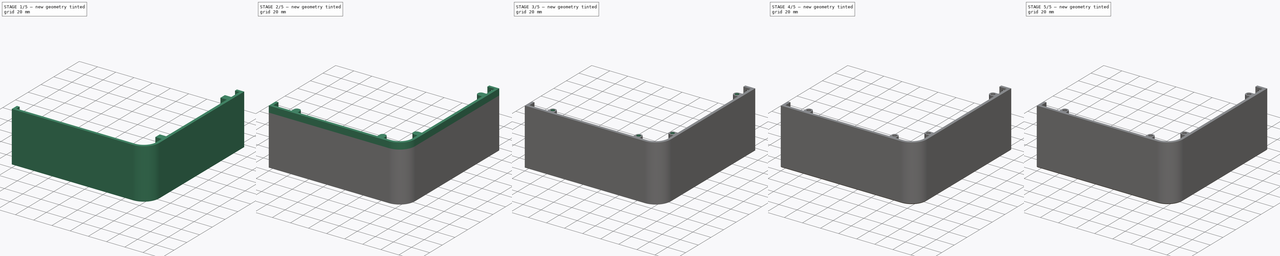
[diagram: build sequence overview — one tinted view per stage of 5, left to right]
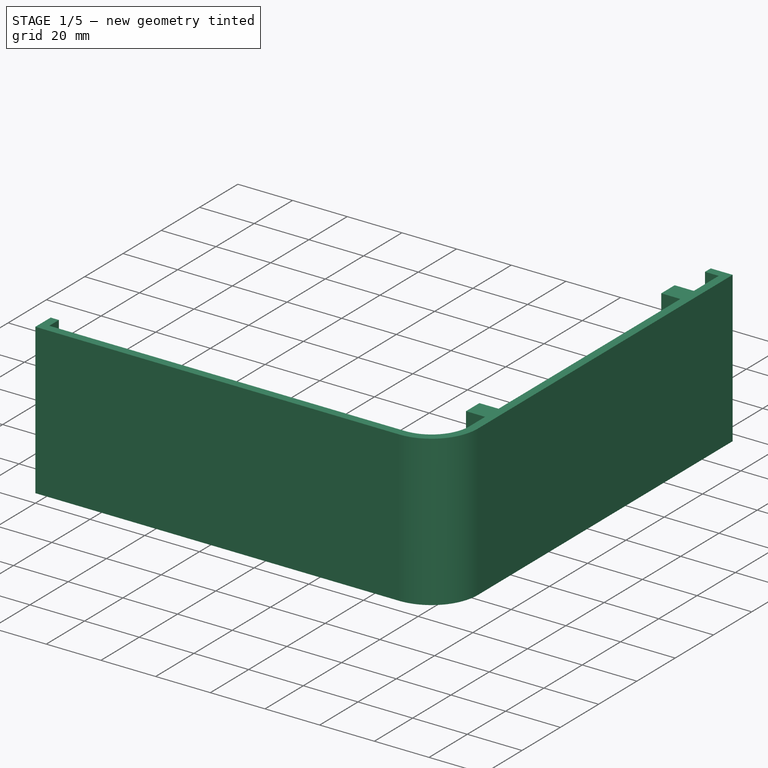
[diagram: stage 1 of 5 — iso view after this stage's code; geometry added in this stage tinted green]
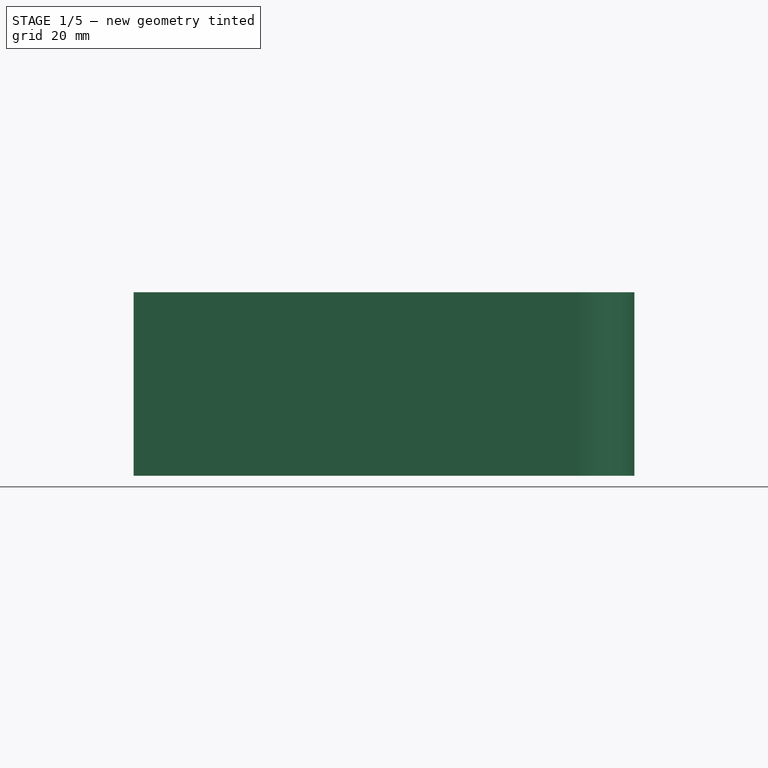
[diagram: stage 1 of 5 — front view after this stage's code; geometry added in this stage tinted green]
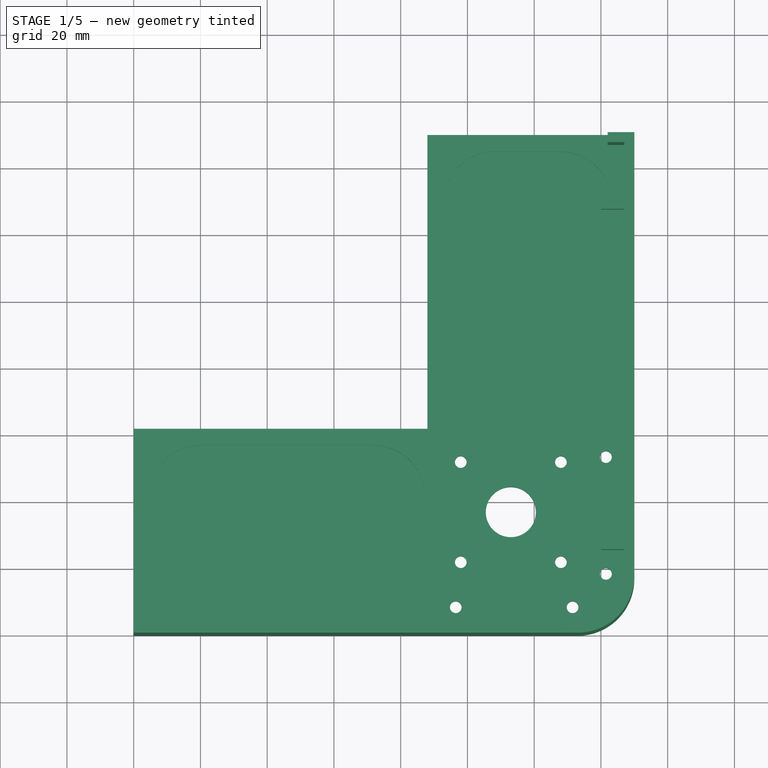
[diagram: stage 1 of 5 — top view after this stage's code; geometry added in this stage tinted green]
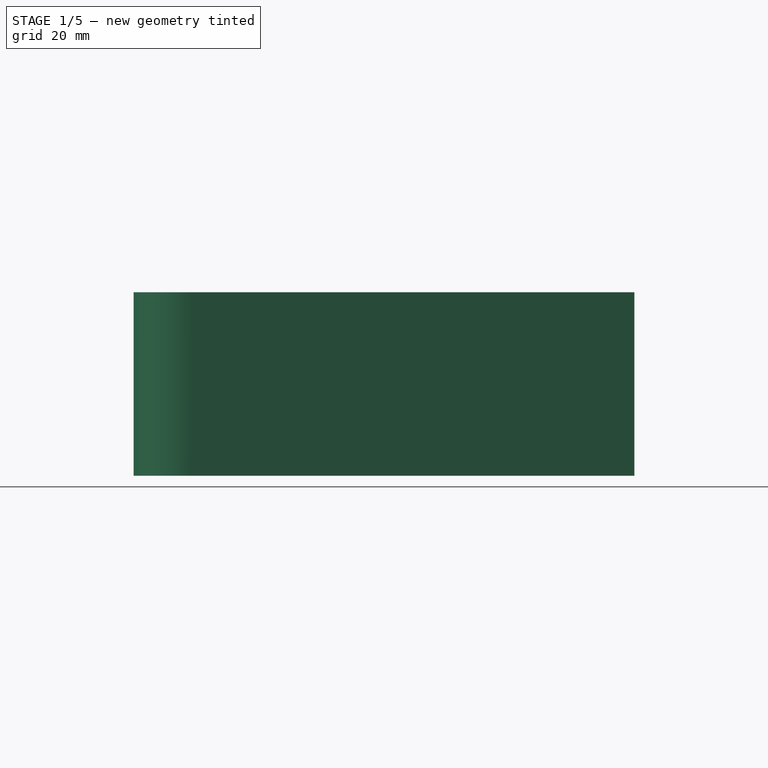
[diagram: stage 1 of 5 — right view after this stage's code; geometry added in this stage tinted green]
FCSTD DOCUMENT  (FreeCAD 0.21R33771 (Git))
Label: upper_plate_adapter
License: All rights reserved
LicenseURL: http://en.wikipedia.org/wiki/All_rights_reserved
objects: Sketcher::SketchObject×18, PartDesign::Fillet×18, App::MeasureDistance×17, PartDesign::Pad×12, PartDesign::Pocket×9, PartDesign::Chamfer×3, PartDesign::Body×1
note: 103 computed .brp shape members not serialized (recipe doc carries the construction recipe); baked Part::Feature solids carry a one-line shape summary decoded from their .brp

FEATURE [Sketcher::SketchObject] Sketch
  FullyConstrained = false
  MapMode = 5
  Support = -> [XY_Plane]
  sketch-geometry (27):
    g0: LineSegment StartX=0 StartY=0 StartZ=0 EndX=150 EndY=0 EndZ=0
    g1: LineSegment StartX=150 StartY=0 StartZ=0 EndX=150 EndY=150 EndZ=0
    g2: LineSegment StartX=150 StartY=150 StartZ=0 EndX=0 EndY=150 EndZ=0
    g3: LineSegment StartX=0 StartY=150 StartZ=0 EndX=0 EndY=0 EndZ=0
    g4: LineSegment StartX=0 StartY=0 StartZ=0 EndX=0 EndY=62 EndZ=0
    g5: LineSegment StartX=150 StartY=150 StartZ=0 EndX=88 EndY=150 EndZ=0
    g6: LineSegment StartX=0 StartY=62 StartZ=0 EndX=88 EndY=62 EndZ=0
    g7: LineSegment StartX=88 StartY=150 StartZ=0 EndX=88 EndY=62 EndZ=0
    g8: LineSegment StartX=96.5 StartY=53.5 StartZ=0 EndX=141.5 EndY=53.5 EndZ=0
    g9: LineSegment StartX=141.5 StartY=53.5 StartZ=0 EndX=141.5 EndY=8.5 EndZ=0
    g10: LineSegment StartX=141.5 StartY=8.5 StartZ=0 EndX=96.5 EndY=8.5 EndZ=0
    g11: LineSegment StartX=96.5 StartY=8.5 StartZ=0 EndX=96.5 EndY=53.5 EndZ=0
    g12: LineSegment StartX=88 StartY=62 StartZ=0 EndX=150 EndY=0 EndZ=0
    g13: LineSegment StartX=88 StartY=62 StartZ=0 EndX=96.5 EndY=53.5 EndZ=0
    g14: Circle CenterX=96.5 CenterY=8.5 CenterZ=0 NormalX=0 NormalY=0 NormalZ=1 AngleXU=0 Radius=1.75
    g15: Circle CenterX=141.5 CenterY=53.5 CenterZ=0 NormalX=0 NormalY=0 NormalZ=1 AngleXU=0 Radius=1.75
    g16: LineSegment StartX=141.5 StartY=8.5 StartZ=0 EndX=131.5 EndY=8.5 EndZ=0
    g17: LineSegment StartX=131.5 StartY=8.5 StartZ=0 EndX=131.5 EndY=18.5 EndZ=0
    g18: LineSegment StartX=131.5 StartY=18.5 StartZ=0 EndX=141.5 EndY=18.5 EndZ=0
    g19: LineSegment StartX=141.5 StartY=18.5 StartZ=0 EndX=141.5 EndY=8.5 EndZ=0
    g20: Circle CenterX=131.5 CenterY=8.5 CenterZ=0 NormalX=0 NormalY=0 NormalZ=1 AngleXU=0 Radius=1.75
    g21: Circle CenterX=141.5 CenterY=18.5 CenterZ=0 NormalX=0 NormalY=0 NormalZ=1 AngleXU=0 Radius=1.75
    g22: Circle CenterX=113 CenterY=37 CenterZ=0 NormalX=0 NormalY=0 NormalZ=1 AngleXU=0 Radius=7.5
    g23: LineSegment StartX=98.5801 StartY=51.4199 StartZ=0 EndX=127.809 EndY=51.4199 EndZ=0
    g24: LineSegment StartX=127.809 StartY=51.4199 StartZ=0 EndX=127.809 EndY=22.1914 EndZ=0
    g25: LineSegment StartX=127.809 StartY=22.1914 StartZ=0 EndX=98.5801 EndY=22.1914 EndZ=0
    g26: LineSegment StartX=98.5801 StartY=22.1914 StartZ=0 EndX=98.5801 EndY=51.4199 EndZ=0
  constraints (69):
    c: Coincident(g0,g1)
    c: Coincident(g1,g2)
    c: Coincident(g2,g3)
    c: Coincident(g3,g0)
    c: Horizontal(g0)
    c: Horizontal(g2)
    c: Vertical(g1)
    c: Vertical(g3)
    c: Coincident(g0,g-1)
    c: DistanceX(g0,g0) = 150
    c: DistanceY(g1,g1) = 150
    c: Coincident(g4,g0)
    c: PointOnObject(g4,g3)
    c: Coincident(g5,g1)
    c: PointOnObject(g5,g2)
    c: DistanceX(g5,g1) = 62
    c: Equal(g4,g5)
    c: Coincident(g6,g4)
    c: Horizontal(g6)
    c: Coincident(g7,g5)
    c: Coincident(g7,g6)
    c: Vertical(g7)
    c: Coincident(g8,g9)
    c: Coincident(g9,g10)
    c: Coincident(g10,g11)
    c: Coincident(g11,g8)
    c: Horizontal(g8)
    c: Horizontal(g10)
    c: Vertical(g9)
    c: Vertical(g11)
    c: Equal(g10,g9)
    c: DistanceX(g10,g10) = 45
    c: Coincident(g12,g6)
    c: Coincident(g12,g0)
    c: PointOnObject(g8,g12)
    c: Coincident(g13,g6)
    c: Coincident(g13,g8)
    c: DistanceX(g9,g0) = 8.5
    c: Coincident(g14,g10)
    c: Coincident(g15,g8)
    c: Coincident(g16,g17)
    c: Coincident(g17,g18)
    c: Coincident(g18,g19)
    c: Coincident(g19,g16)
    c: Horizontal(g16)
    c: Horizontal(g18)
    c: Vertical(g17)
    c: Vertical(g19)
    c: Coincident(g16,g9)
    c: PointOnObject(g17,g12)
    c: DistanceY(g17,g17) = 10
    c: Coincident(g20,g16)
    c: Coincident(g21,g18)
    c: Equal(g21,g15)
    c: Equal(g21,g20)
    c: Equal(g21,g14)
    c: Diameter(g21) = 3.5
    c: PointOnObject(g22,g12)
    c: Diameter(g22) = 15
    c: DistanceX(g6,g22) = 25
    c: Coincident(g23,g24)
    c: Coincident(g24,g25)
    c: Coincident(g25,g26)
    c: Coincident(g26,g23)
    c: Horizontal(g23)
    c: Horizontal(g25)
    c: Vertical(g24)
    c: Vertical(g26)
    c: PointOnObject(g23,g12)
FEATURE [PartDesign::Pad] Pad
  Direction = (0,0,1)
  Length = 5
  Length2 = 10
  Profile = -> Sketch
  ReferenceAxis = -> Sketch [N_Axis]
  Type = 0
FEATURE [PartDesign::Fillet] Fillet
  Base = -> Pad [Edge2]
  BaseFeature = -> Pad
  Radius = 17
  SupportTransform = false
  UseAllEdges = false
FEATURE [Sketcher::SketchObject] Sketch001
  FullyConstrained = true
  MapMode = 5
  Placement = pos=(0,0,5) rot=(0,0,1;0rad)
  Support = -> [Fillet]
  sketch-geometry (12):
    g0: LineSegment StartX=0 StartY=0 StartZ=0 EndX=0 EndY=3 EndZ=0
    g1: LineSegment StartX=0 StartY=3 StartZ=0 EndX=133 EndY=3 EndZ=0
    g2: LineSegment StartX=150 StartY=150 StartZ=0 EndX=147 EndY=150 EndZ=0
    g3: LineSegment StartX=147 StartY=150 StartZ=0 EndX=147 EndY=17 EndZ=0
    g4: LineSegment StartX=150 StartY=150 StartZ=0 EndX=150 EndY=17 EndZ=0
    g5: LineSegment StartX=0 StartY=0 StartZ=0 EndX=133 EndY=0 EndZ=0
    g6: LineSegment StartX=133 StartY=3 StartZ=0 EndX=133 EndY=0 EndZ=0
    g7: LineSegment StartX=147 StartY=17 StartZ=0 EndX=150 EndY=17 EndZ=0
    g8: LineSegment StartX=133 StartY=3 StartZ=0 EndX=133 EndY=17 EndZ=0
    g9: LineSegment StartX=147 StartY=17 StartZ=0 EndX=133 EndY=17 EndZ=0
    g10: ArcOfCircle CenterX=133 CenterY=17 CenterZ=0 NormalX=0 NormalY=0 NormalZ=1 AngleXU=0 Radius=17 StartAngle=4.71239 EndAngle=6.28318
    g11: ArcOfCircle CenterX=133 CenterY=17 CenterZ=0 NormalX=0 NormalY=0 NormalZ=1 AngleXU=0 Radius=14 StartAngle=4.71239 EndAngle=6.28318
  constraints (32):
    c: Coincident(g0,g-1)
    c: PointOnObject(g0,g-2)
    c: Coincident(g1,g0)
    c: Horizontal(g1)
    c: Horizontal(g2)
    c: Coincident(g3,g2)
    c: Vertical(g3)
    c: Coincident(g4,g2)
    c: Vertical(g4)
    c: Coincident(g5,g0)
    c: PointOnObject(g5,g-1)
    c: Coincident(g6,g1)
    c: Coincident(g6,g5)
    c: Perpendicular(g1,g6)
    c: Coincident(g7,g3)
    c: Horizontal(g7)
    c: Coincident(g7,g4)
    c: Equal(g7,g6)
    c: Equal(g4,g5)
    c: Coincident(g8,g1)
    c: Vertical(g8)
    c: Coincident(g9,g3)
    c: Coincident(g9,g8)
    c: Coincident(g10,g8)
    c: Coincident(g10,g5)
    c: Coincident(g10,g4)
    c: Coincident(g11,g10)
    c: Coincident(g11,g1)
    c: Coincident(g11,g3)
    c: DistanceX(g0,g4) = 150
    c: DistanceY(g6,g6) = 3
    c: DistanceX(g9,g9) = 14
FEATURE [PartDesign::Pad] Pad001
  BaseFeature = -> Fillet
  Direction = (0,0,1)
  Length = 50
  Length2 = 10
  Profile = -> Sketch001
  ReferenceAxis = -> Sketch001 [N_Axis]
  Type = 0
FEATURE [Sketcher::SketchObject] Sketch002
  FullyConstrained = true
  MapMode = 5
  Placement = pos=(147,0,0) rot=(0.57735,-0.57735,-0.57735;2.0944rad)
  Support = -> [Pad001]
  sketch-geometry (4):
    g0: LineSegment StartX=-150 StartY=5 StartZ=0 EndX=-147 EndY=5 EndZ=0
    g1: LineSegment StartX=-147 StartY=5 StartZ=0 EndX=-147 EndY=55 EndZ=0
    g2: LineSegment StartX=-147 StartY=55 StartZ=0 EndX=-150 EndY=55 EndZ=0
    g3: LineSegment StartX=-150 StartY=55 StartZ=0 EndX=-150 EndY=5 EndZ=0
  constraints (12):
    c: Coincident(g0,g1)
    c: Coincident(g1,g2)
    c: Coincident(g2,g3)
    c: Coincident(g3,g0)
    c: Horizontal(g0)
    c: Horizontal(g2)
    c: Vertical(g1)
    c: Vertical(g3)
    c: DistanceY(g3,g3) = 50
    c: DistanceX(g0,g-1) = 150
    c: DistanceX(g2,g2) = 3
    c: DistanceY(g-1,g0) = 5
FEATURE [PartDesign::Pad] Pad002
  BaseFeature = -> Pad001
  Direction = (-1,0,0)
  Length = 5
  Length2 = 10
  Profile = -> Sketch002
  ReferenceAxis = -> Sketch002 [N_Axis]
  Type = 0
FEATURE [Sketcher::SketchObject] Sketch003
  FullyConstrained = true
  MapMode = 5
  Placement = pos=(0,3,0) rot=(0,0.707107,0.707107;3.14159rad)
  Support = -> [Pad002]
  sketch-geometry (4):
    g0: LineSegment StartX=0 StartY=5 StartZ=0 EndX=-3 EndY=5 EndZ=0
    g1: LineSegment StartX=-3 StartY=5 StartZ=0 EndX=-3 EndY=55 EndZ=0
    g2: LineSegment StartX=-3 StartY=55 StartZ=0 EndX=0 EndY=55 EndZ=0
    g3: LineSegment StartX=0 StartY=55 StartZ=0 EndX=0 EndY=5 EndZ=0
  constraints (12):
    c: Coincident(g0,g1)
    c: Coincident(g1,g2)
    c: Coincident(g2,g3)
    c: Coincident(g3,g0)
    c: Horizontal(g0)
    c: Horizontal(g2)
    c: Vertical(g1)
    c: Vertical(g3)
    c: PointOnObject(g0,g-2)
    c: DistanceX(g2,g2) = 3
    c: DistanceY(g3,g3) = 50
    c: DistanceY(g-1,g0) = 5
FEATURE [PartDesign::Pad] Pad003
  BaseFeature = -> Pad002
  Direction = (0,1,-2e-16)
  Length = 5
  Length2 = 10
  Profile = -> Sketch003
  ReferenceAxis = -> Sketch003 [N_Axis]
  Type = 0
FEATURE [Sketcher::SketchObject] Sketch004
  FullyConstrained = true
  MapMode = 5
  Placement = pos=(0,0,5) rot=(0,0,1;0rad)
  Support = -> [Pad003]
FEATURE [Sketcher::SketchObject] Sketch005
  FullyConstrained = true
  MapMode = 5
  Placement = pos=(0,0,5) rot=(0,0,1;0rad)
  Support = -> [Pad003]
  sketch-geometry (21):
    g0: Circle CenterX=113 CenterY=37 CenterZ=0 NormalX=0 NormalY=0 NormalZ=1 AngleXU=0 Radius=7.5
    g1: LineSegment StartX=113 StartY=37 StartZ=0 EndX=128 EndY=37 EndZ=0
    g2: LineSegment StartX=128 StartY=37 StartZ=0 EndX=128 EndY=22 EndZ=0
    g3: LineSegment StartX=128 StartY=22 StartZ=0 EndX=113 EndY=22 EndZ=0
    g4: LineSegment StartX=113 StartY=22 StartZ=0 EndX=113 EndY=37 EndZ=0
    g5: LineSegment StartX=128 StartY=37 StartZ=0 EndX=113 EndY=37 EndZ=0
    g6: LineSegment StartX=113 StartY=37 StartZ=0 EndX=113 EndY=52 EndZ=0
    g7: LineSegment StartX=113 StartY=52 StartZ=0 EndX=128 EndY=52 EndZ=0
    g8: LineSegment StartX=128 StartY=52 StartZ=0 EndX=128 EndY=37 EndZ=0
    g9: LineSegment StartX=113 StartY=37 StartZ=0 EndX=98 EndY=37 EndZ=0
    g10: LineSegment StartX=98 StartY=37 StartZ=0 EndX=98 EndY=52 EndZ=0
    g11: LineSegment StartX=98 StartY=52 StartZ=0 EndX=113 EndY=52 EndZ=0
    g12: LineSegment StartX=113 StartY=52 StartZ=0 EndX=113 EndY=37 EndZ=0
    g13: LineSegment StartX=113 StartY=37 StartZ=0 EndX=98 EndY=37 EndZ=0
    g14: LineSegment StartX=98 StartY=37 StartZ=0 EndX=98 EndY=22 EndZ=0
    g15: LineSegment StartX=98 StartY=22 StartZ=0 EndX=113 EndY=22 EndZ=0
    g16: LineSegment StartX=113 StartY=22 StartZ=0 EndX=113 EndY=37 EndZ=0
    g17: Circle CenterX=98 CenterY=52 CenterZ=0 NormalX=0 NormalY=0 NormalZ=1 AngleXU=0 Radius=1.75
    g18: Circle CenterX=128 CenterY=52 CenterZ=0 NormalX=0 NormalY=0 NormalZ=1 AngleXU=0 Radius=1.75
    g19: Circle CenterX=128 CenterY=22 CenterZ=0 NormalX=0 NormalY=0 NormalZ=1 AngleXU=0 Radius=1.75
    g20: Circle CenterX=98 CenterY=22 CenterZ=0 NormalX=0 NormalY=0 NormalZ=1 AngleXU=0 Radius=1.75
  constraints (51):
    c: DistanceX(g-1,g0) = 113
    c: DistanceY(g-1,g0) = 37
    c: Diameter(g0) = 15
    c: Coincident(g1,g2)
    c: Coincident(g2,g3)
    c: Coincident(g3,g4)
    c: Coincident(g4,g1)
    c: Horizontal(g1)
    c: Horizontal(g3)
    c: Vertical(g2)
    c: Vertical(g4)
    c: Coincident(g1,g0)
    c: Coincident(g5,g6)
    c: Coincident(g6,g7)
    c: Coincident(g7,g8)
    c: Coincident(g8,g5)
    c: Horizontal(g7)
    c: Vertical(g6)
    c: Vertical(g8)
    c: Coincident(g5,g1)
    c: Coincident(g5,g1)
    c: Coincident(g9,g10)
    c: Coincident(g10,g11)
    c: Coincident(g11,g12)
    c: Coincident(g12,g9)
    c: Horizontal(g9)
    c: Horizontal(g11)
    c: Vertical(g10)
    c: Coincident(g9,g5)
    c: Coincident(g13,g14)
    c: Coincident(g14,g15)
    c: Coincident(g15,g16)
    c: Coincident(g16,g13)
    c: Horizontal(g15)
    c: Vertical(g14)
    c: Coincident(g13,g5)
    c: Coincident(g13,g9)
    c: Coincident(g11,g6)
    c: Coincident(g15,g3)
    c: Equal(g9,g1)
    c: Equal(g1,g4)
    c: Equal(g4,g6)
    c: DistanceX(g14,g2) = 30
    c: Coincident(g17,g10)
    c: Coincident(g18,g7)
    c: Coincident(g19,g2)
    c: Coincident(g20,g14)
    c: Equal(g20,g17)
    c: Equal(g20,g18)
    c: Equal(g20,g19)
    c: Diameter(g20) = 3.5
FEATURE [PartDesign::Pocket] Pocket
  BaseFeature = -> Pad003
  Direction = (0,0,-1)
  Length = 5
  Length2 = 5
  Profile = -> Sketch005
  ReferenceAxis = -> Sketch005 [N_Axis]
  Type = 1
FEATURE [Sketcher::SketchObject] Sketch006
  FullyConstrained = true
  MapMode = 5
  Placement = pos=(0,0,5) rot=(0,0,1;0rad)
  Support = -> [Pocket]
  sketch-geometry (24):
    g0: ArcOfCircle CenterX=108 CenterY=130 CenterZ=0 NormalX=0 NormalY=0 NormalZ=1 AngleXU=0 Radius=15 StartAngle=1.5708 EndAngle=3.14159
    g1: LineSegment StartX=108 StartY=145 StartZ=0 EndX=128 EndY=145 EndZ=0
    g2: ArcOfCircle CenterX=128 CenterY=130 CenterZ=0 NormalX=0 NormalY=0 NormalZ=1 AngleXU=0 Radius=15 StartAngle=-9e-16 EndAngle=1.5708
    g3: LineSegment StartX=143 StartY=130 StartZ=0 EndX=143 EndY=78 EndZ=0
    g4: ArcOfCircle CenterX=128 CenterY=78 CenterZ=0 NormalX=0 NormalY=0 NormalZ=1 AngleXU=0 Radius=15 StartAngle=4.71239 EndAngle=6.28319
    g5: LineSegment StartX=128 StartY=63 StartZ=0 EndX=108 EndY=63 EndZ=0
    g6: ArcOfCircle CenterX=108 CenterY=78 CenterZ=0 NormalX=0 NormalY=0 NormalZ=1 AngleXU=0 Radius=15 StartAngle=3.14159 EndAngle=4.71239
    g7: LineSegment StartX=93 StartY=78 StartZ=0 EndX=93 EndY=130 EndZ=0
    g8: GeomPoint X=93 Y=145 Z=0
    g9: GeomPoint X=143 Y=63 Z=0
    g10: ArcOfCircle CenterX=20 CenterY=42 CenterZ=0 NormalX=0 NormalY=0 NormalZ=1 AngleXU=0 Radius=15 StartAngle=1.5708 EndAngle=3.14159
    g11: LineSegment StartX=20 StartY=57 StartZ=0 EndX=72 EndY=57 EndZ=0
    g12: ArcOfCircle CenterX=72 CenterY=42 CenterZ=0 NormalX=0 NormalY=0 NormalZ=1 AngleXU=0 Radius=15 StartAngle=0 EndAngle=1.5708
    g13: LineSegment StartX=87 StartY=42 StartZ=0 EndX=87 EndY=22 EndZ=0
    g14: ArcOfCircle CenterX=72 CenterY=22 CenterZ=0 NormalX=0 NormalY=0 NormalZ=1 AngleXU=0 Radius=15 StartAngle=4.71239 EndAngle=6.28319
    g15: LineSegment StartX=72 StartY=7 StartZ=0 EndX=20 EndY=7 EndZ=0
    g16: ArcOfCircle CenterX=20 CenterY=22 CenterZ=0 NormalX=0 NormalY=0 NormalZ=1 AngleXU=0 Radius=15 StartAngle=3.14159 EndAngle=4.71239
    g17: LineSegment StartX=5 StartY=22 StartZ=0 EndX=5 EndY=42 EndZ=0
    g18: GeomPoint X=5 Y=57 Z=0
    g19: GeomPoint X=87 Y=7 Z=0
    g20: LineSegment StartX=93 StartY=130 StartZ=0 EndX=143 EndY=130 EndZ=0
    g21: LineSegment StartX=20 StartY=57 StartZ=0 EndX=20 EndY=7 EndZ=0
    g22: GeomPoint X=88 Y=150 Z=0
    g23: LineSegment StartX=72 StartY=57 StartZ=0 EndX=93 EndY=78 EndZ=0
  constraints (56):
    c: Tangent(g0,g1) = 1.5708
    c: Tangent(g1,g2) = 1.5708
    c: Tangent(g2,g3) = 1.5708
    c: Tangent(g3,g4) = 1.5708
    c: Tangent(g4,g5) = 1.5708
    c: Tangent(g5,g6) = 1.5708
    c: Tangent(g6,g7) = 1.5708
    c: Tangent(g7,g0) = 1.5708
    c: Horizontal(g1)
    c: Horizontal(g5)
    c: Vertical(g3)
    c: Vertical(g7)
    c: Equal(g0,g2)
    c: Equal(g2,g4)
    c: Equal(g4,g6)
    c: PointOnObject(g8,g1)
    c: PointOnObject(g8,g7)
    c: PointOnObject(g9,g3)
    c: PointOnObject(g9,g5)
    c: Tangent(g10,g11) = 1.5708
    c: Tangent(g11,g12) = 1.5708
    c: Tangent(g12,g13) = 1.5708
    c: Tangent(g13,g14) = 1.5708
    c: Tangent(g14,g15) = 1.5708
    c: Tangent(g15,g16) = 1.5708
    c: Tangent(g16,g17) = 1.5708
    c: Tangent(g17,g10) = 1.5708
    c: Horizontal(g11)
    c: Horizontal(g15)
    c: Vertical(g13)
    c: Vertical(g17)
    c: Equal(g10,g12)
    c: Equal(g12,g14)
    c: Equal(g14,g16)
    c: PointOnObject(g18,g11)
    c: PointOnObject(g18,g17)
    c: PointOnObject(g19,g13)
    c: PointOnObject(g19,g15)
    c: Equal(g12,g6)
    c: Equal(g13,g5)
    c: Coincident(g20,g0)
    c: Coincident(g20,g2)
    c: Coincident(g21,g10)
    c: Coincident(g21,g15)
    c: DistanceY(g15,g10) = 50
    c: DistanceY(g-1,g15) = 7
    c: DistanceX(g-1,g16) = 5
    c: DistanceX(g16,g13) = 82
    c: Radius(g10) = 15
    c: Equal(g7,g11)
    c: DistanceX(g-1,g22) = 88
    c: DistanceY(g-1,g22) = 150
    c: DistanceY(g0,g22) = 5
    c: Coincident(g23,g11)
    c: Coincident(g23,g6)
    c: Angle(g23,g11) = 2.35619
FEATURE [PartDesign::Pocket] Pocket001
  BaseFeature = -> Pocket
  Direction = (0,0,-1)
  Length = 2.5
  Length2 = 5
  Profile = -> Sketch006
  ReferenceAxis = -> Sketch006 [N_Axis]
  Type = 0
FEATURE [Sketcher::SketchObject] Sketch007
  FullyConstrained = true
  MapMode = 5
  Placement = pos=(0,0,5) rot=(0,0,1;0rad)
  Support = -> [Pocket001]
FEATURE [Sketcher::SketchObject] Sketch008
  FullyConstrained = true
  MapMode = 5
  Placement = pos=(147,0,0) rot=(0.57735,-0.57735,-0.57735;2.0944rad)
  Support = -> [Pocket001]
  sketch-geometry (12):
    g0: LineSegment StartX=-32 StartY=55 StartZ=0 EndX=-25 EndY=55 EndZ=0
    g1: LineSegment StartX=-25 StartY=55 StartZ=0 EndX=-25 EndY=43 EndZ=0
    g2: LineSegment StartX=-25 StartY=43 StartZ=0 EndX=-32 EndY=43 EndZ=0
    g3: LineSegment StartX=-32 StartY=43 StartZ=0 EndX=-32 EndY=55 EndZ=0
    g4: LineSegment StartX=-32 StartY=55 StartZ=0 EndX=-127 EndY=55 EndZ=0
    g5: LineSegment StartX=-127 StartY=55 StartZ=0 EndX=-127 EndY=43 EndZ=0
    g6: LineSegment StartX=-127 StartY=43 StartZ=0 EndX=-32 EndY=43 EndZ=0
    g7: LineSegment StartX=-32 StartY=43 StartZ=0 EndX=-32 EndY=55 EndZ=0
    g8: LineSegment StartX=-127 StartY=55 StartZ=0 EndX=-134 EndY=55 EndZ=0
    g9: LineSegment StartX=-134 StartY=55 StartZ=0 EndX=-134 EndY=43 EndZ=0
    g10: LineSegment StartX=-134 StartY=43 StartZ=0 EndX=-127 EndY=43 EndZ=0
    g11: LineSegment StartX=-127 StartY=43 StartZ=0 EndX=-127 EndY=55 EndZ=0
  constraints (32):
    c: Coincident(g0,g1)
    c: Coincident(g1,g2)
    c: Coincident(g2,g3)
    c: Coincident(g3,g0)
    c: Horizontal(g0)
    c: Horizontal(g2)
    c: Vertical(g1)
    c: Vertical(g3)
    c: DistanceX(g0,g0) = 7
    c: DistanceY(g1,g1) = 12
    c: DistanceY(g-1,g0) = 55
    c: DistanceX(g1,g-1) = 25
    c: Coincident(g4,g5)
    c: Coincident(g5,g6)
    c: Coincident(g6,g7)
    c: Coincident(g7,g4)
    c: Horizontal(g4)
    c: Horizontal(g6)
    c: Vertical(g5)
    c: Coincident(g4,g0)
    c: Coincident(g6,g2)
    c: DistanceX(g6,g6) = 95
    c: Coincident(g8,g9)
    c: Coincident(g9,g10)
    c: Coincident(g10,g11)
    c: Coincident(g11,g8)
    c: Horizontal(g8)
    c: Horizontal(g10)
    c: Vertical(g9)
    c: Coincident(g8,g4)
    c: Coincident(g10,g5)
    c: Equal(g10,g2)
FEATURE [PartDesign::Pad] Pad004
  BaseFeature = -> Pocket001
  Direction = (-1,0,0)
  Length = 7
  Length2 = 10
  Profile = -> Sketch008
  ReferenceAxis = -> Sketch008 [N_Axis]
  Type = 0
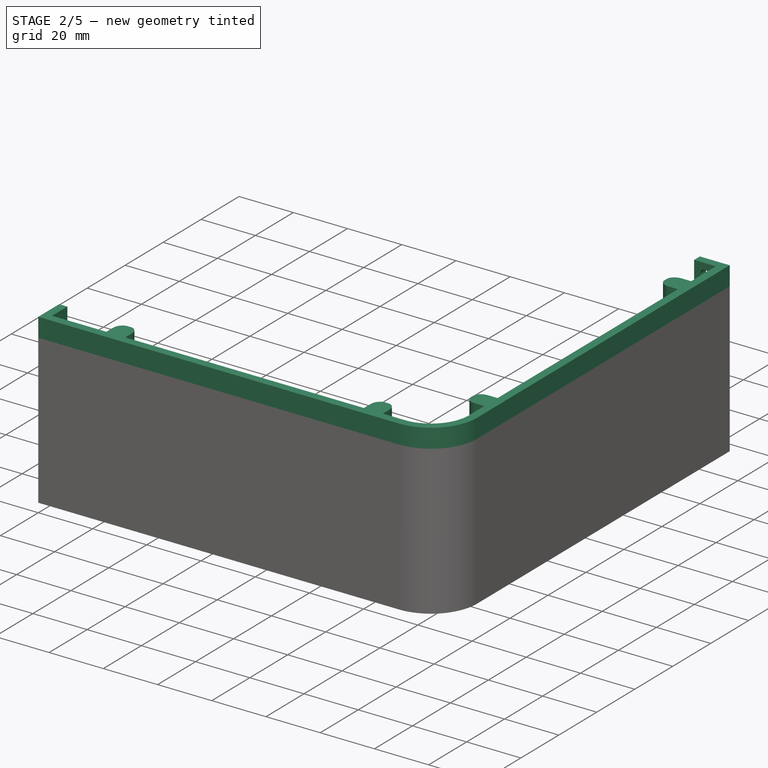
[diagram: stage 2 of 5 — iso view after this stage's code; geometry added in this stage tinted green]
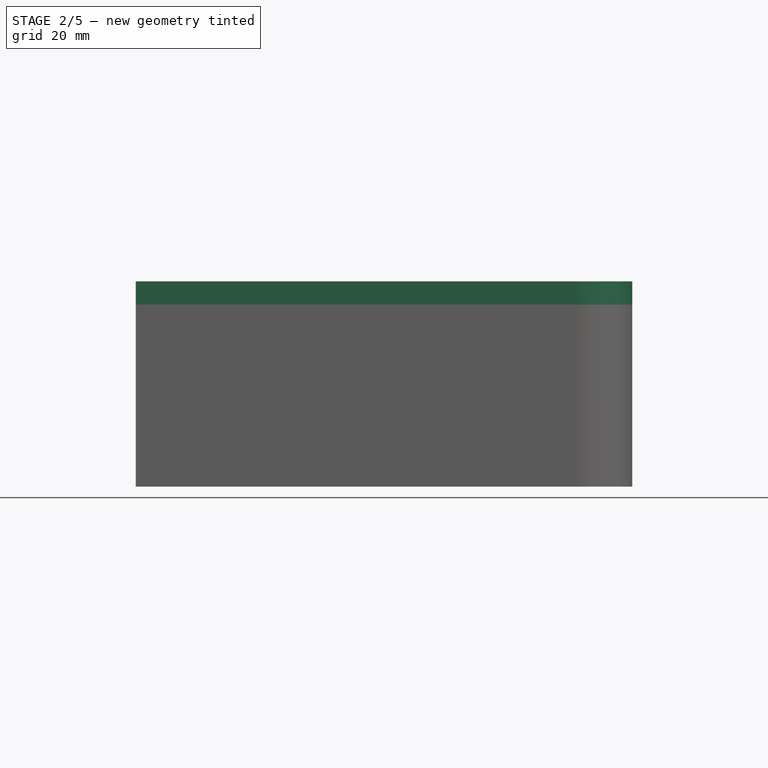
[diagram: stage 2 of 5 — front view after this stage's code; geometry added in this stage tinted green]
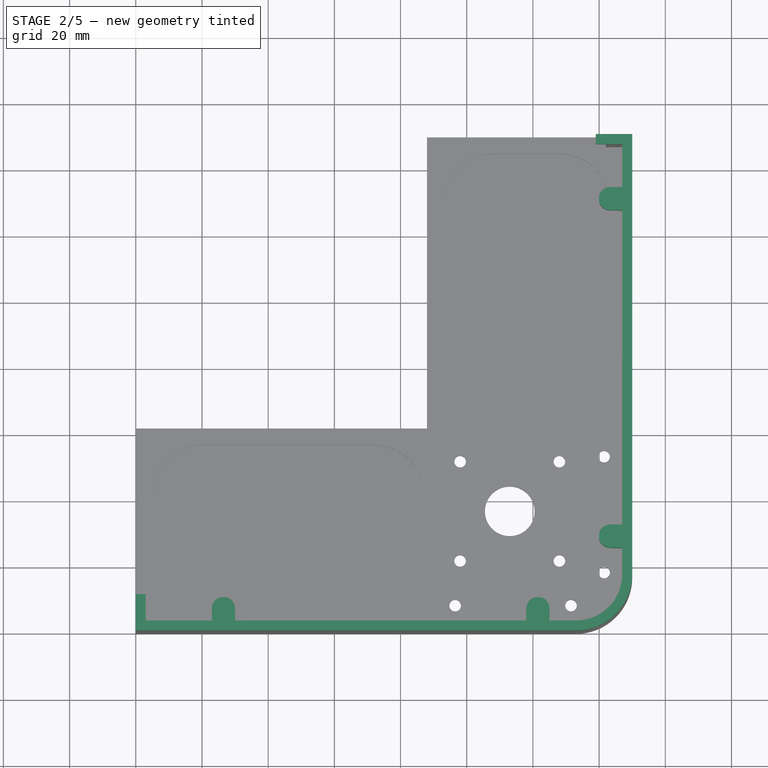
[diagram: stage 2 of 5 — top view after this stage's code; geometry added in this stage tinted green]
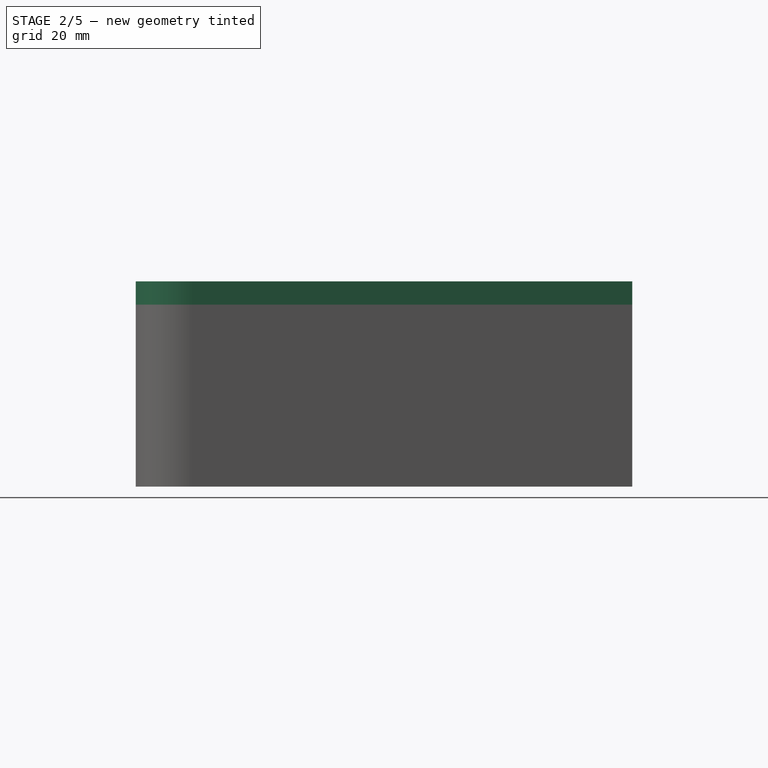
[diagram: stage 2 of 5 — right view after this stage's code; geometry added in this stage tinted green]
FEATURE [Sketcher::SketchObject] Sketch009
  FullyConstrained = true
  MapMode = 5
  Placement = pos=(0,134,0) rot=(0,0.707107,0.707107;3.14159rad)
  Support = -> [Pad004]
  sketch-geometry (3):
    g0: LineSegment StartX=-140 StartY=55 StartZ=0 EndX=-140 EndY=43 EndZ=0
    g1: LineSegment StartX=-147 StartY=43 StartZ=0 EndX=-140 EndY=43 EndZ=0
    g2: LineSegment StartX=-147 StartY=43 StartZ=0 EndX=-140 EndY=55 EndZ=0
  constraints (9):
    c: Vertical(g0)
    c: DistanceY(g0,g0) = 12
    c: DistanceX(g0,g-1) = 140
    c: DistanceY(g-1,g0) = 55
    c: Coincident(g1,g0)
    c: Horizontal(g1)
    c: DistanceX(g1,g1) = 7
    c: Coincident(g2,g1)
    c: Coincident(g2,g0)
FEATURE [PartDesign::Pocket] Pocket002
  BaseFeature = -> Pad004
  Direction = (0,-1,2e-16)
  Length = 109
  Length2 = 5
  Profile = -> Sketch009
  ReferenceAxis = -> Sketch009 [N_Axis]
  Type = 0
FEATURE [PartDesign::Fillet] Fillet001
  Base = -> Pocket002 [Edge163,Edge164,Edge162,Edge161]
  BaseFeature = -> Pocket002
  Radius = 3
  SupportTransform = false
  UseAllEdges = false
FEATURE [Sketcher::SketchObject] Sketch010
  FullyConstrained = true
  MapMode = 5
  Placement = pos=(0,3,0) rot=(0,0.707107,0.707107;3.14159rad)
  Support = -> [Fillet001]
  sketch-geometry (9):
    g0: LineSegment StartX=-125 StartY=55 StartZ=0 EndX=-118 EndY=55 EndZ=0
    g1: LineSegment StartX=-118 StartY=55 StartZ=0 EndX=-118 EndY=43 EndZ=0
    g2: LineSegment StartX=-118 StartY=43 StartZ=0 EndX=-125 EndY=43 EndZ=0
    g3: LineSegment StartX=-125 StartY=43 StartZ=0 EndX=-125 EndY=55 EndZ=0
    g4: GeomPoint X=-150 Y=55 Z=0
    g5: LineSegment StartX=-23 StartY=55 StartZ=0 EndX=-30 EndY=55 EndZ=0
    g6: LineSegment StartX=-30 StartY=55 StartZ=0 EndX=-30 EndY=43 EndZ=0
    g7: LineSegment StartX=-30 StartY=43 StartZ=0 EndX=-23 EndY=43 EndZ=0
    g8: LineSegment StartX=-23 StartY=43 StartZ=0 EndX=-23 EndY=55 EndZ=0
  constraints (26):
    c: Coincident(g0,g1)
    c: Coincident(g1,g2)
    c: Coincident(g2,g3)
    c: Coincident(g3,g0)
    c: Horizontal(g0)
    c: Horizontal(g2)
    c: Vertical(g1)
    c: Vertical(g3)
    c: DistanceY(g1,g1) = 12
    c: DistanceX(g0,g0) = 7
    c: DistanceX(g4,g-1) = 150
    c: DistanceY(g-1,g4) = 55
    c: DistanceY(g0,g4) = 0
    c: DistanceX(g4,g0) = 25
    c: Coincident(g5,g6)
    c: Coincident(g6,g7)
    c: Coincident(g7,g8)
    c: Coincident(g8,g5)
    c: Horizontal(g5)
    c: Horizontal(g7)
    c: Vertical(g6)
    c: Vertical(g8)
    c: Equal(g8,g1)
    c: Equal(g7,g2)
    c: DistanceY(g0,g5) = 0
    c: DistanceX(g0,g5) = 95
FEATURE [PartDesign::Pad] Pad005
  BaseFeature = -> Fillet001
  Direction = (0,1,-2e-16)
  Length = 7
  Length2 = 10
  Profile = -> Sketch010
  ReferenceAxis = -> Sketch010 [N_Axis]
  Type = 0
FEATURE [Sketcher::SketchObject] Sketch011
  FullyConstrained = true
  MapMode = 5
  Placement = pos=(23,0,0) rot=(0.57735,-0.57735,-0.57735;2.0944rad)
  Support = -> [Pad005]
  sketch-geometry (3):
    g0: LineSegment StartX=-10 StartY=55 StartZ=0 EndX=-10 EndY=43 EndZ=0
    g1: LineSegment StartX=-10 StartY=43 StartZ=0 EndX=-3 EndY=43 EndZ=0
    g2: LineSegment StartX=-3 StartY=43 StartZ=0 EndX=-10 EndY=55 EndZ=0
  constraints (9):
    c: Vertical(g0)
    c: DistanceY(g0,g0) = 12
    c: DistanceY(g-1,g0) = 55
    c: DistanceX(g0,g-1) = 10
    c: Coincident(g1,g0)
    c: Horizontal(g1)
    c: DistanceX(g1,g1) = 7
    c: Coincident(g2,g1)
    c: Coincident(g2,g0)
FEATURE [PartDesign::Pocket] Pocket003
  BaseFeature = -> Pad005
  Direction = (1,0,0)
  Length = 102
  Length2 = 5
  Profile = -> Sketch011
  ReferenceAxis = -> Sketch011 [N_Axis]
  Type = 0
FEATURE [PartDesign::Fillet] Fillet002
  Base = -> Pocket003 [Edge190,Edge191,Edge193,Edge192]
  BaseFeature = -> Pocket003
  Radius = 3
  SupportTransform = false
  UseAllEdges = false
FEATURE [PartDesign::Pad] Pad006
  BaseFeature = -> Fillet002
  Direction = (0,2e-16,1)
  Length = 7
  Length2 = 10
  Profile = -> Fillet002 [Face17,Face13,Face22,Face20,Face4,Face18,Face16]
  Type = 0
FEATURE [PartDesign::Pad] Pad007
  BaseFeature = -> Pad006
  Direction = (-1,0,0)
  Length = 3
  Length2 = 10
  Profile = -> Pad006 [Face94]
  Type = 0
FEATURE [PartDesign::Pad] Pad008
  BaseFeature = -> Pad007
  Direction = (0,1,-2e-16)
  Length = 3
  Length2 = 10
  Profile = -> Pad007 [Face90]
  Type = 0
FEATURE [Sketcher::SketchObject] Sketch012
  FullyConstrained = true
  MapMode = 5
  Placement = pos=(0,150,-3.33e-14) rot=(0,0.707107,0.707107;3.14159rad)
  Support = -> [Pad008]
  sketch-geometry (1):
    g0: Circle CenterX=-143 CenterY=58 CenterZ=0 NormalX=0 NormalY=0 NormalZ=1 AngleXU=0 Radius=1.75
  constraints (3):
    c: Diameter(g0) = 3.5
    c: DistanceX(g0,g-1) = 143
    c: DistanceY(g-1,g0) = 58
FEATURE [PartDesign::Pocket] Pocket004
  BaseFeature = -> Pad008
  Direction = (0,-1,2e-16)
  Length = 5
  Length2 = 5
  Profile = -> Sketch012
  ReferenceAxis = -> Sketch012 [N_Axis]
  Type = 0
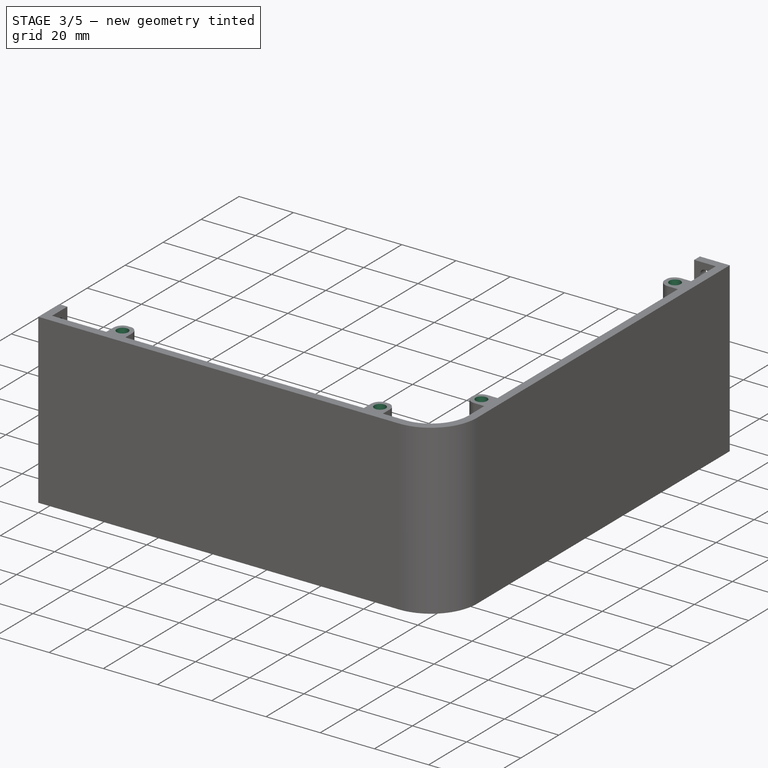
[diagram: stage 3 of 5 — iso view after this stage's code; geometry added in this stage tinted green]
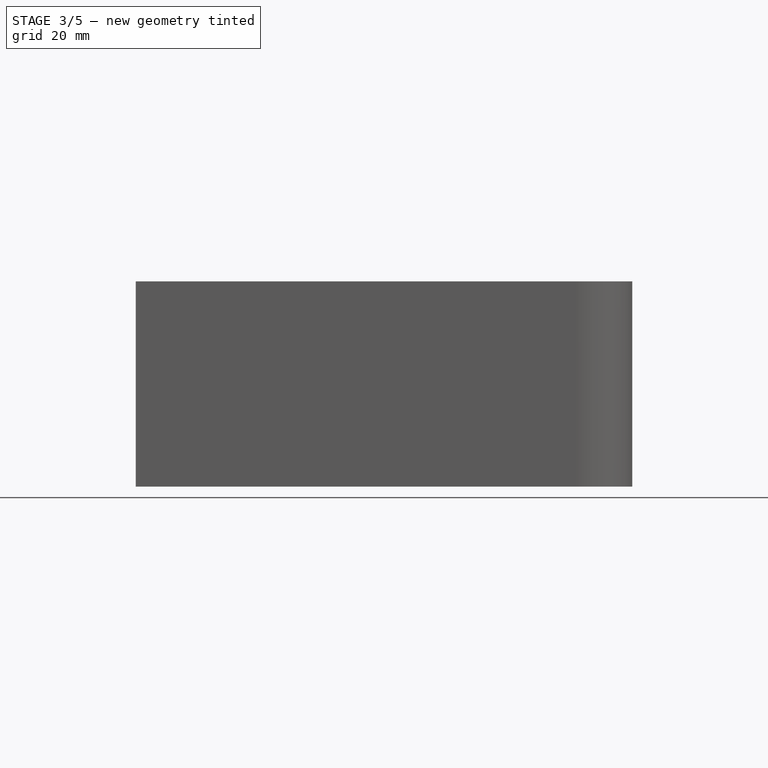
[diagram: stage 3 of 5 — front view after this stage's code; geometry added in this stage tinted green]
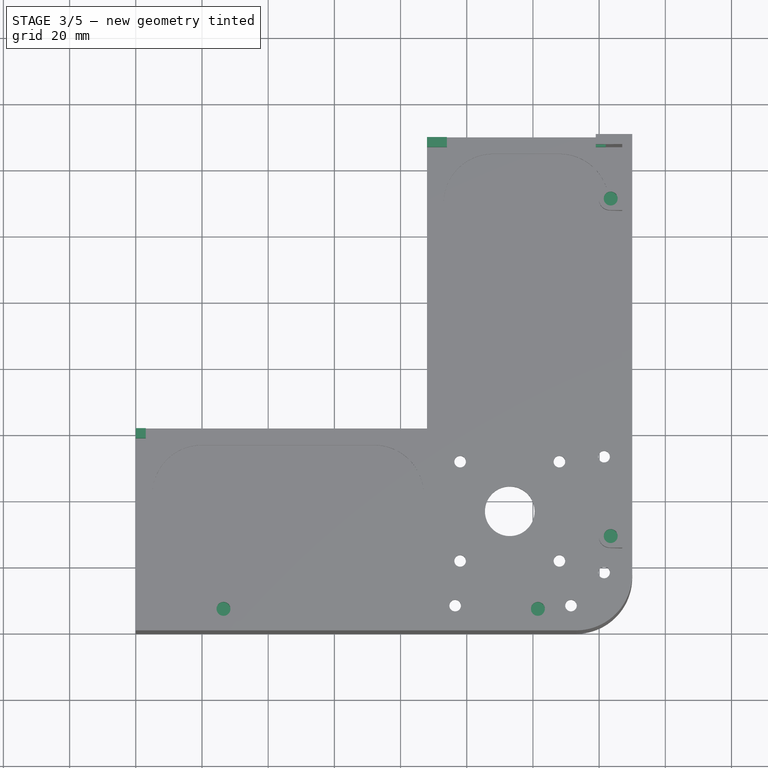
[diagram: stage 3 of 5 — top view after this stage's code; geometry added in this stage tinted green]
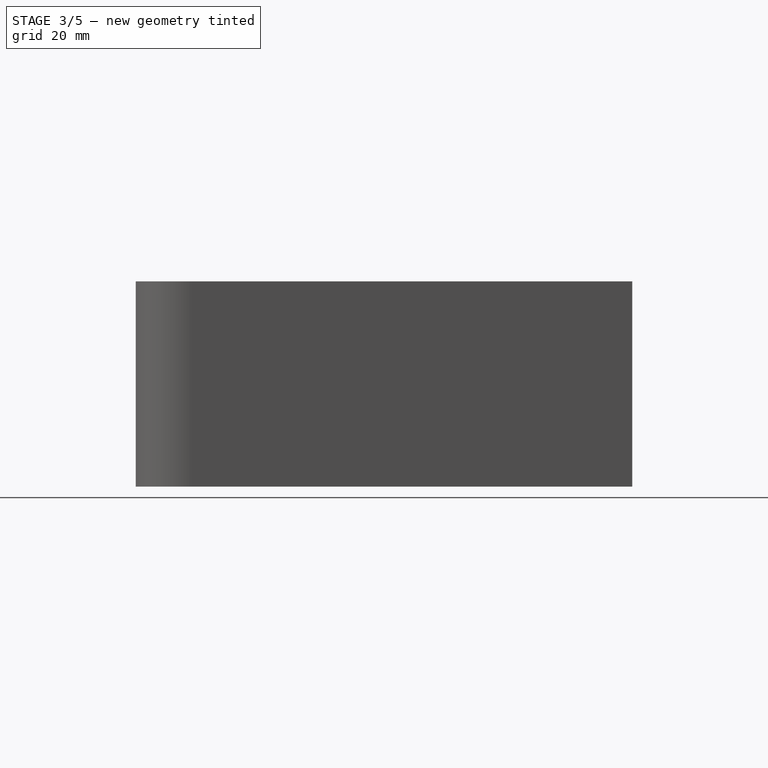
[diagram: stage 3 of 5 — right view after this stage's code; geometry added in this stage tinted green]
FEATURE [PartDesign::Fillet] Fillet003
  Base = -> Pocket004 [Edge136]
  BaseFeature = -> Pocket004
  Radius = 2
  SupportTransform = false
  UseAllEdges = false
FEATURE [PartDesign::Fillet] Fillet004
  Base = -> Fillet003 [Edge72]
  BaseFeature = -> Fillet003
  Radius = 0.5
  SupportTransform = false
  UseAllEdges = false
FEATURE [Sketcher::SketchObject] Sketch013
  FullyConstrained = true
  MapMode = 5
  Placement = pos=(0,0,0) rot=(0.57735,-0.57735,-0.57735;2.0944rad)
  Support = -> [Fillet004]
  sketch-geometry (1):
    g0: Circle CenterX=-7 CenterY=58 CenterZ=0 NormalX=0 NormalY=0 NormalZ=1 AngleXU=0 Radius=1.75
  constraints (3):
    c: DistanceX(g0,g-1) = 7
    c: Diameter(g0) = 3.5
    c: DistanceY(g-1,g0) = 58
FEATURE [PartDesign::Pocket] Pocket005
  BaseFeature = -> Fillet004
  Direction = (1,0,0)
  Length = 5
  Length2 = 5
  Profile = -> Sketch013
  ReferenceAxis = -> Sketch013 [N_Axis]
  Type = 0
FEATURE [PartDesign::Fillet] Fillet005
  Base = -> Pocket005 [Edge99]
  BaseFeature = -> Pocket005
  Radius = 2
  SupportTransform = false
  UseAllEdges = false
FEATURE [PartDesign::Fillet] Fillet006
  Base = -> Fillet005 [Edge72]
  BaseFeature = -> Fillet005
  Radius = 0.5
  SupportTransform = false
  UseAllEdges = false
FEATURE [Sketcher::SketchObject] Sketch014
  FullyConstrained = true
  MapMode = 5
  Placement = pos=(0,1.38e-14,62) rot=(0,0,1;0rad)
  Support = -> [Fillet006]
  sketch-geometry (8):
    g0: Circle CenterX=26.5 CenterY=6.5 CenterZ=0 NormalX=0 NormalY=0 NormalZ=1 AngleXU=0 Radius=2.1
    g1: Circle CenterX=121.5 CenterY=6.5 CenterZ=0 NormalX=0 NormalY=0 NormalZ=1 AngleXU=0 Radius=2.1
    g2: Circle CenterX=143.5 CenterY=28.5 CenterZ=0 NormalX=0 NormalY=0 NormalZ=1 AngleXU=0 Radius=2.1
    g3: Circle CenterX=143.5 CenterY=130.5 CenterZ=0 NormalX=0 NormalY=0 NormalZ=1 AngleXU=0 Radius=2.1
    g4: LineSegment StartX=121.5 StartY=6.5 StartZ=0 EndX=143.5 EndY=6.5 EndZ=0
    g5: LineSegment StartX=143.5 StartY=28.5 StartZ=0 EndX=143.5 EndY=6.5 EndZ=0
    g6: LineSegment StartX=121.5 StartY=6.5 StartZ=0 EndX=26.5 EndY=6.5 EndZ=0
    g7: LineSegment StartX=143.5 StartY=28.5 StartZ=0 EndX=143.5 EndY=130.5 EndZ=0
  constraints (21):
    c: Coincident(g4,g1)
    c: Horizontal(g4)
    c: Coincident(g5,g2)
    c: Vertical(g5)
    c: Coincident(g5,g4)
    c: Equal(g4,g5)
    c: Equal(g1,g2)
    c: Diameter(g1) = 4.2
    c: Equal(g1,g0)
    c: Equal(g0,g3)
    c: Coincident(g6,g1)
    c: Horizontal(g6)
    c: Coincident(g6,g0)
    c: DistanceX(g6,g6) = 95
    c: Coincident(g7,g2)
    c: Vertical(g7)
    c: Coincident(g7,g3)
    c: DistanceY(g-1,g0) = 6.5
    c: DistanceX(g-1,g0) = 26.5
    c: DistanceY(g5,g5) = 22
    c: DistanceY(g7,g7) = 102
FEATURE [PartDesign::Pocket] Pocket006
  BaseFeature = -> Fillet006
  Direction = (0,-2e-16,-1)
  Length = 5
  Length2 = 5
  Profile = -> Sketch014
  ReferenceAxis = -> Sketch014 [N_Axis]
  Type = 0
FEATURE [Sketcher::SketchObject] Sketch015
  FullyConstrained = true
  MapMode = 5
  Placement = pos=(0,0,5) rot=(0,0,1;0rad)
  Support = -> [Pocket006]
  sketch-geometry (16):
    g0: LineSegment StartX=139 StartY=150 StartZ=0 EndX=142 EndY=150 EndZ=0
    g1: LineSegment StartX=142 StartY=150 StartZ=0 EndX=142 EndY=147 EndZ=0
    g2: LineSegment StartX=142 StartY=147 StartZ=0 EndX=139 EndY=147 EndZ=0
    g3: LineSegment StartX=139 StartY=147 StartZ=0 EndX=139 EndY=150 EndZ=0
    g4: LineSegment StartX=88 StartY=150 StartZ=0 EndX=91 EndY=150 EndZ=0
    g5: LineSegment StartX=91 StartY=150 StartZ=0 EndX=91 EndY=147 EndZ=0
    g6: LineSegment StartX=91 StartY=147 StartZ=0 EndX=88 EndY=147 EndZ=0
    g7: LineSegment StartX=88 StartY=147 StartZ=0 EndX=88 EndY=150 EndZ=0
    g8: LineSegment StartX=0 StartY=8 StartZ=0 EndX=3 EndY=8 EndZ=0
    g9: LineSegment StartX=3 StartY=8 StartZ=0 EndX=3 EndY=11 EndZ=0
    g10: LineSegment StartX=3 StartY=11 StartZ=0 EndX=0 EndY=11 EndZ=0
    g11: LineSegment StartX=0 StartY=11 StartZ=0 EndX=0 EndY=8 EndZ=0
    g12: LineSegment StartX=0 StartY=62 StartZ=0 EndX=3 EndY=62 EndZ=0
    g13: LineSegment StartX=3 StartY=62 StartZ=0 EndX=3 EndY=59 EndZ=0
    g14: LineSegment StartX=3 StartY=59 StartZ=0 EndX=0 EndY=59 EndZ=0
    g15: LineSegment StartX=0 StartY=59 StartZ=0 EndX=0 EndY=62 EndZ=0
  constraints (48):
    c: Coincident(g0,g1)
    c: Coincident(g1,g2)
    c: Coincident(g2,g3)
    c: Coincident(g3,g0)
    c: Horizontal(g0)
    c: Horizontal(g2)
    c: Vertical(g1)
    c: Vertical(g3)
    c: Coincident(g4,g5)
    c: Coincident(g5,g6)
    c: Coincident(g6,g7)
    c: Coincident(g7,g4)
    c: Horizontal(g4)
    c: Horizontal(g6)
    c: Vertical(g5)
    c: Vertical(g7)
    c: Equal(g4,g0)
    c: Equal(g5,g3)
    c: Coincident(g8,g9)
    c: Coincident(g9,g10)
    c: Coincident(g10,g11)
    c: Coincident(g11,g8)
    c: Horizontal(g8)
    c: Horizontal(g10)
    c: Vertical(g9)
    c: Vertical(g11)
    c: PointOnObject(g8,g-2)
    c: Equal(g9,g2)
    c: Equal(g10,g3)
    c: Coincident(g12,g13)
    c: Coincident(g13,g14)
    c: Coincident(g14,g15)
    c: Coincident(g15,g12)
    c: Horizontal(g12)
    c: Horizontal(g14)
    c: Vertical(g13)
    c: Vertical(g15)
    c: PointOnObject(g12,g-2)
    c: Equal(g13,g9)
    c: Equal(g10,g14)
    c: DistanceX(g14,g14) = 3
    c: DistanceY(g9,g9) = 3
    c: DistanceY(g-1,g8) = 8
    c: DistanceY(g-1,g14) = 59
    c: DistanceX(g-1,g6) = 88
    c: DistanceY(g-1,g4) = 150
    c: DistanceY(g0,g4) = 0
    c: DistanceX(g5,g2) = 48
FEATURE [PartDesign::Pad] Pad009
  BaseFeature = -> Pocket006
  Direction = (0,0,1)
  Length = 6
  Length2 = 10
  Profile = -> Sketch015
  ReferenceAxis = -> Sketch015 [N_Axis]
  Type = 0
FEATURE [PartDesign::Pad] Pad010
  BaseFeature = -> Pad009
  Direction = (1,0,0)
  Length = 3
  Length2 = 10
  Profile = -> Pad009 [Face27]
  Type = 0
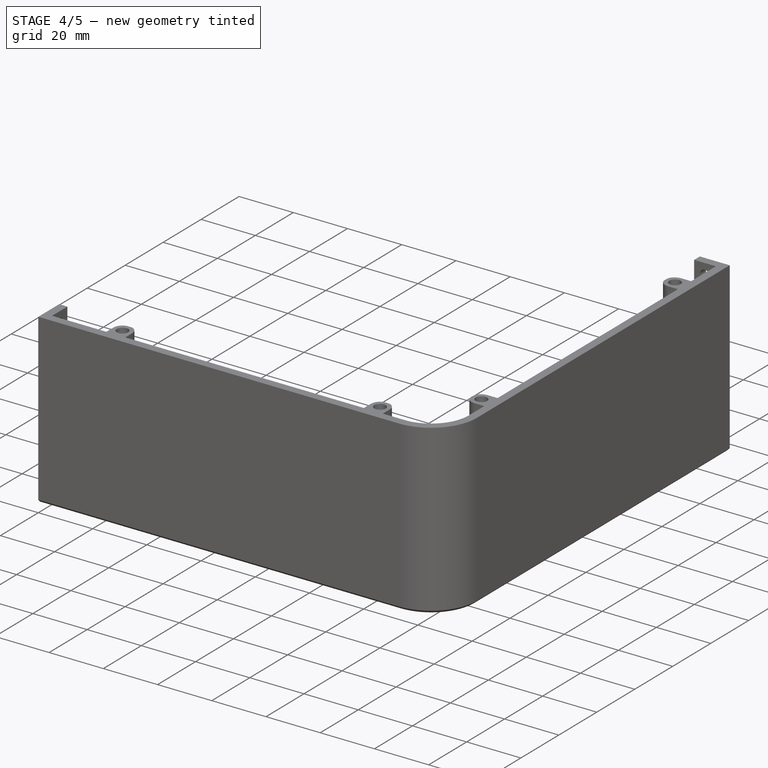
[diagram: stage 4 of 5 — iso view after this stage's code; geometry added in this stage tinted green]
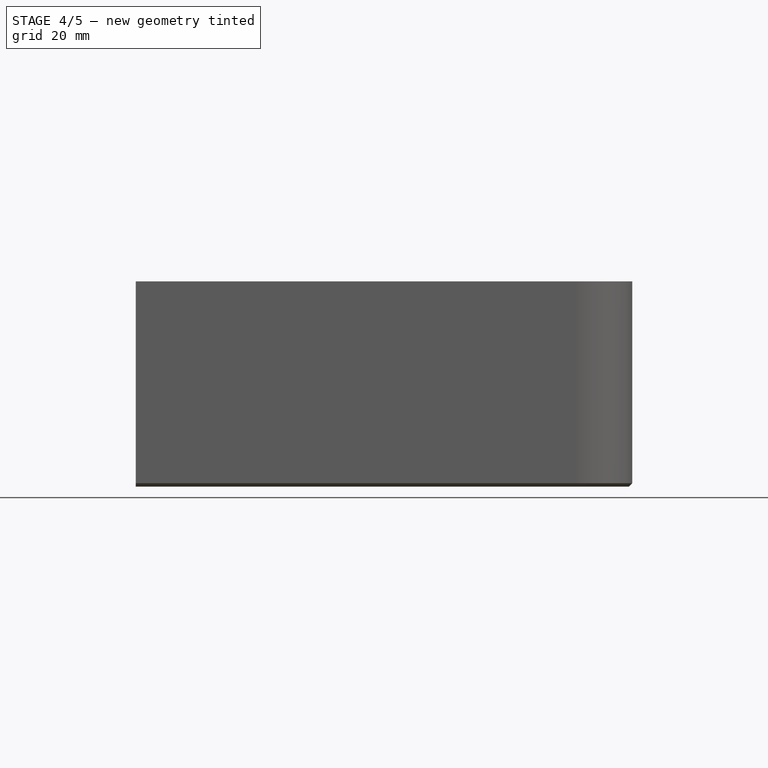
[diagram: stage 4 of 5 — front view after this stage's code; geometry added in this stage tinted green]
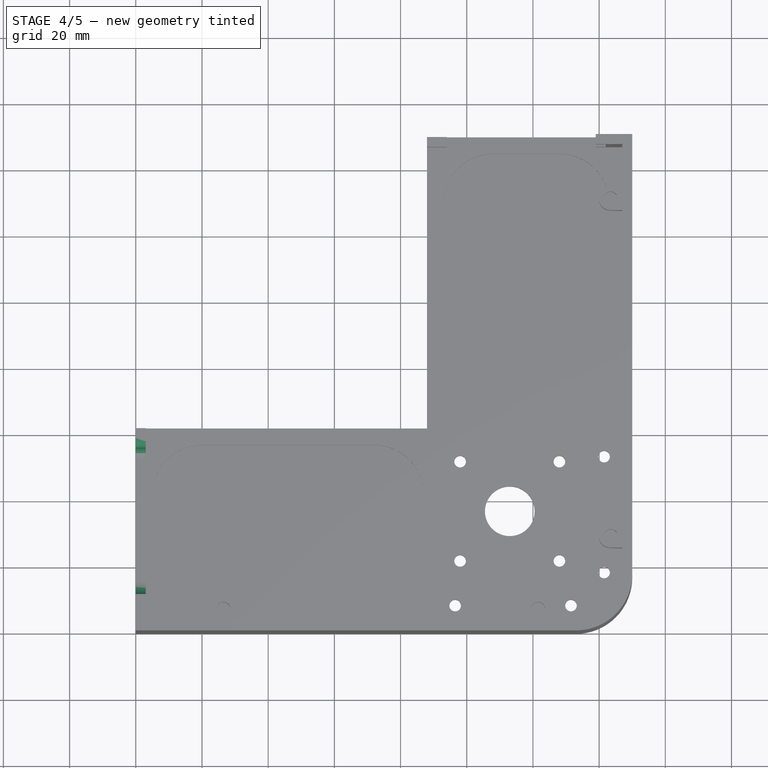
[diagram: stage 4 of 5 — top view after this stage's code; geometry added in this stage tinted green]
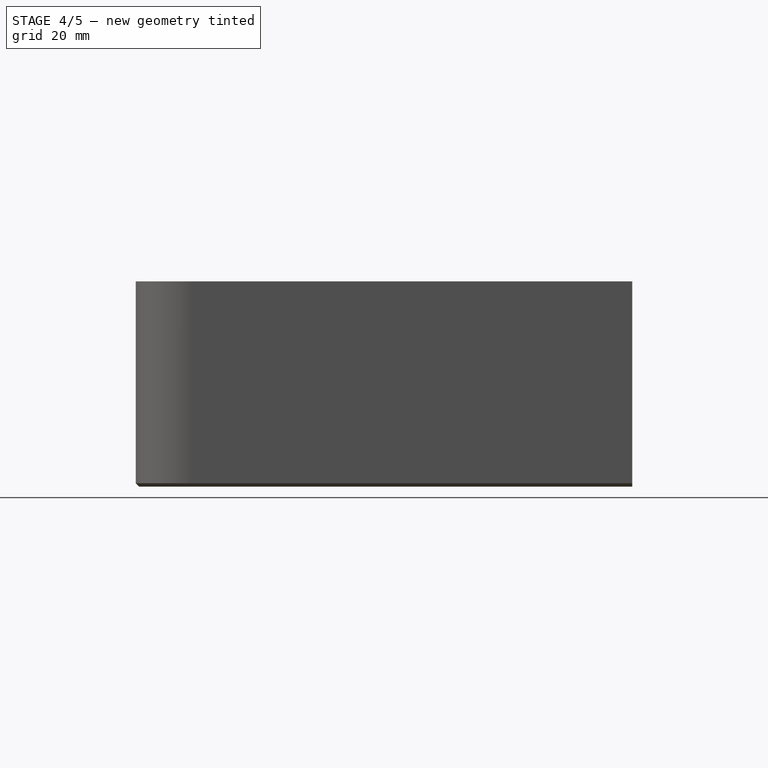
[diagram: stage 4 of 5 — right view after this stage's code; geometry added in this stage tinted green]
FEATURE [PartDesign::Pad] Pad011
  BaseFeature = -> Pad010
  Direction = (0,-1,0)
  Length = 3
  Length2 = 10
  Profile = -> Pad010 [Face22]
  Type = 0
FEATURE [PartDesign::Chamfer] Chamfer
  Angle = 45
  Base = -> Pad011 [Edge254,Edge257,Edge258]
  BaseFeature = -> Pad011
  ChamferType = 0
  FlipDirection = false
  Size = 1
  Size2 = 1
  SupportTransform = false
  UseAllEdges = false
FEATURE [PartDesign::Chamfer] Chamfer001
  Angle = 45
  Base = -> Chamfer [Edge21,Edge19]
  BaseFeature = -> Chamfer
  ChamferType = 0
  FlipDirection = false
  Size = 1
  Size2 = 1
  SupportTransform = false
  UseAllEdges = false
FEATURE [Sketcher::SketchObject] Sketch016
  FullyConstrained = true
  MapMode = 5
  Placement = pos=(0,0,0) rot=(0.57735,-0.57735,-0.57735;2.0944rad)
  Support = -> [Chamfer001]
  sketch-geometry (2):
    g0: Circle CenterX=-7 CenterY=8 CenterZ=0 NormalX=0 NormalY=0 NormalZ=1 AngleXU=0 Radius=1.75
    g1: Circle CenterX=-59 CenterY=8 CenterZ=0 NormalX=0 NormalY=0 NormalZ=1 AngleXU=0 Radius=1.75
  constraints (6):
    c: DistanceX(g1,g-1) = 59
    c: DistanceY(g-1,g1) = 8
    c: DistanceY(g-1,g0) = 8
    c: DistanceX(g0,g-1) = 7
    c: Equal(g0,g1)
    c: Diameter(g0) = 3.5
FEATURE [PartDesign::Pocket] Pocket007
  BaseFeature = -> Chamfer001
  Direction = (1,0,0)
  Length = 5
  Length2 = 5
  Profile = -> Sketch016
  ReferenceAxis = -> Sketch016 [N_Axis]
  Type = 0
FEATURE [PartDesign::Fillet] Fillet007
  Base = -> Pocket007 [Edge159]
  BaseFeature = -> Pocket007
  Radius = 2
  SupportTransform = false
  UseAllEdges = false
FEATURE [PartDesign::Fillet] Fillet008
  Base = -> Fillet007 [Edge58]
  BaseFeature = -> Fillet007
  Radius = 0.5
  SupportTransform = false
  UseAllEdges = false
FEATURE [PartDesign::Fillet] Fillet009
  Base = -> Fillet008 [Edge18]
  BaseFeature = -> Fillet008
  Radius = 5
  SupportTransform = false
  UseAllEdges = false
FEATURE [PartDesign::Fillet] Fillet010
  Base = -> Fillet009 [Edge141]
  BaseFeature = -> Fillet009
  Radius = 2
  SupportTransform = false
  UseAllEdges = false
FEATURE [PartDesign::Fillet] Fillet011
  Base = -> Fillet010 [Edge19]
  BaseFeature = -> Fillet010
  Radius = 3
  SupportTransform = false
  UseAllEdges = false
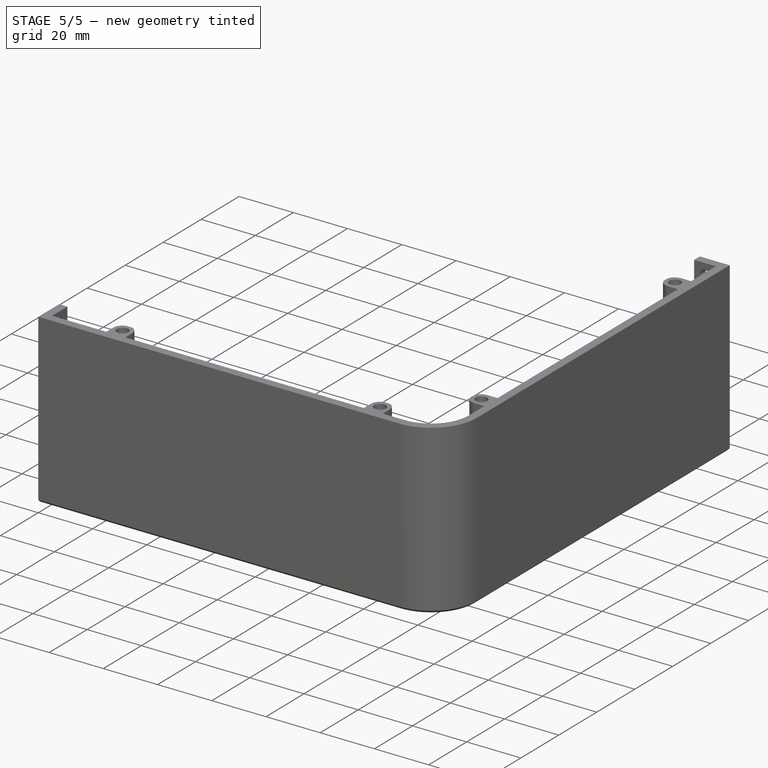
[diagram: stage 5 of 5 — iso view after this stage's code; geometry added in this stage tinted green]
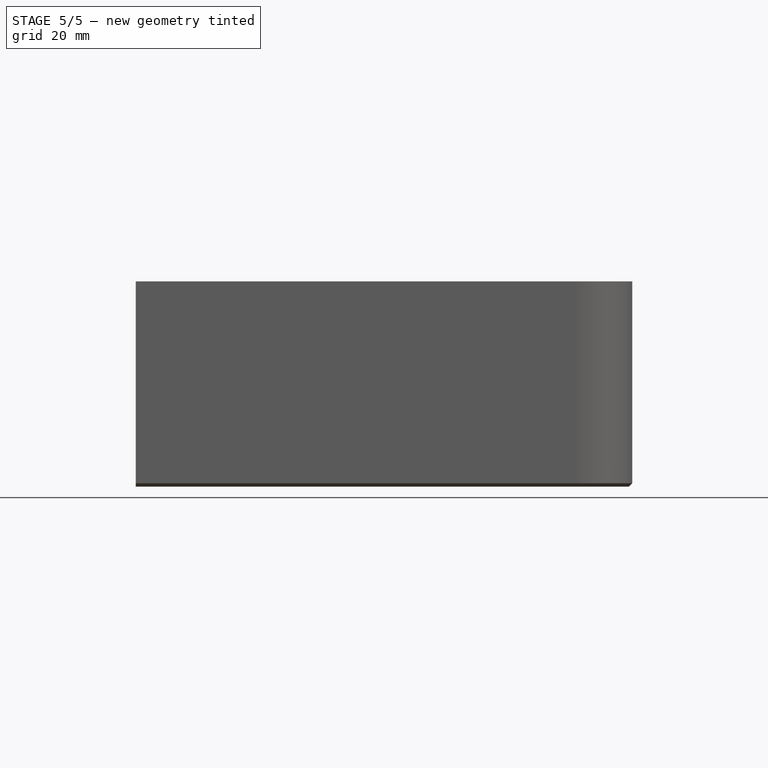
[diagram: stage 5 of 5 — front view after this stage's code; geometry added in this stage tinted green]
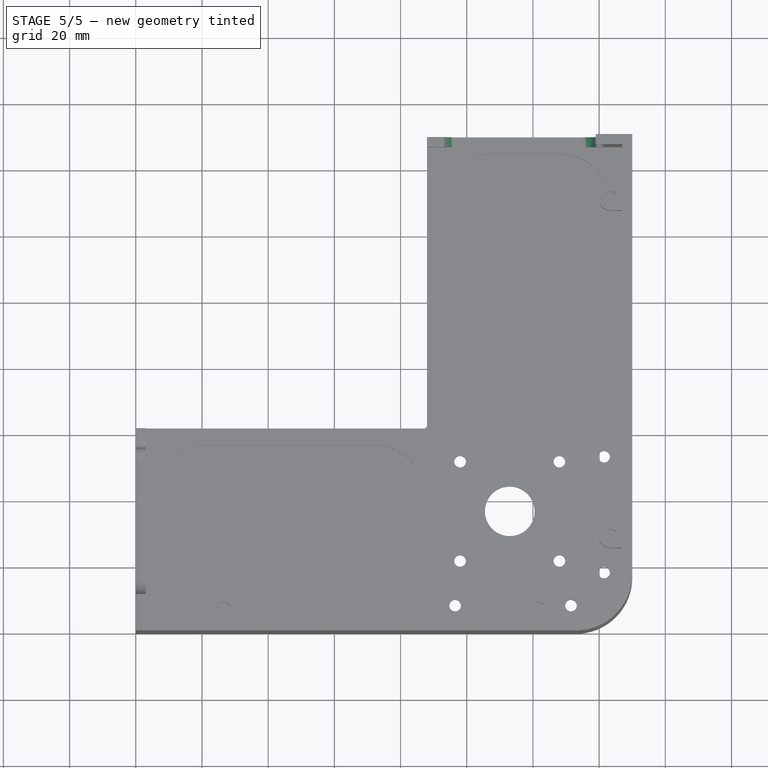
[diagram: stage 5 of 5 — top view after this stage's code; geometry added in this stage tinted green]
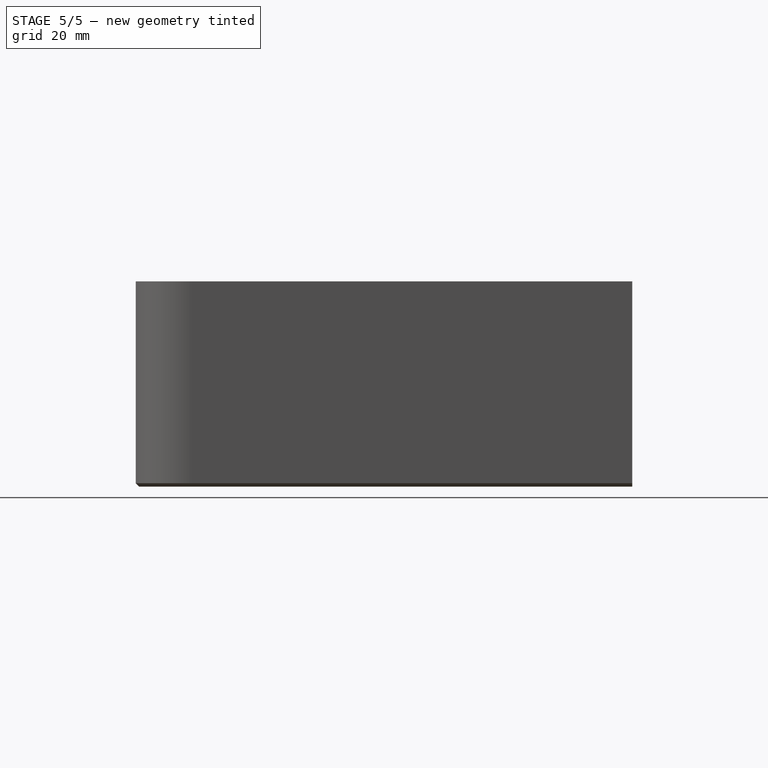
[diagram: stage 5 of 5 — right view after this stage's code; geometry added in this stage tinted green]
FEATURE [PartDesign::Chamfer] Chamfer002
  Angle = 45
  Base = -> Fillet011 [Edge119]
  BaseFeature = -> Fillet011
  ChamferType = 0
  FlipDirection = false
  Size = 1
  Size2 = 1
  SupportTransform = false
  UseAllEdges = false
FEATURE [Sketcher::SketchObject] Sketch017
  FullyConstrained = true
  MapMode = 5
  Placement = pos=(0,150,0) rot=(0,0.707107,0.707107;3.14159rad)
  Support = -> [Chamfer002]
  sketch-geometry (2):
    g0: Circle CenterX=-91 CenterY=8 CenterZ=0 NormalX=0 NormalY=0 NormalZ=1 AngleXU=0 Radius=1.75
    g1: Circle CenterX=-142.5 CenterY=8 CenterZ=0 NormalX=0 NormalY=0 NormalZ=1 AngleXU=0 Radius=1.75
  constraints (6):
    c: DistanceX(g0,g-1) = 91
    c: DistanceX(g1,g-1) = 142.5
    c: DistanceY(g1,g0) = 0
    c: DistanceY(g-1,g0) = 8
    c: Equal(g0,g1)
    c: Diameter(g0) = 3.5
FEATURE [PartDesign::Pocket] Pocket008
  BaseFeature = -> Chamfer002
  Direction = (0,-1,2e-16)
  Length = 5
  Length2 = 5
  Profile = -> Sketch017
  ReferenceAxis = -> Sketch017 [N_Axis]
  Type = 0
FEATURE [PartDesign::Fillet] Fillet012
  Base = -> Pocket008 [Edge320]
  BaseFeature = -> Pocket008
  Radius = 2
  SupportTransform = false
  UseAllEdges = false
FEATURE [PartDesign::Fillet] Fillet013
  Base = -> Fillet012 [Edge58]
  BaseFeature = -> Fillet012
  Radius = 0.5
  SupportTransform = false
  UseAllEdges = false
FEATURE [PartDesign::Fillet] Fillet014
  Base = -> Fillet013 [Edge19]
  BaseFeature = -> Fillet013
  Radius = 5
  SupportTransform = false
  UseAllEdges = false
FEATURE [PartDesign::Fillet] Fillet015
  Base = -> Fillet014 [Edge146]
  BaseFeature = -> Fillet014
  Radius = 2
  SupportTransform = false
  UseAllEdges = false
FEATURE [PartDesign::Fillet] Fillet016
  Base = -> Fillet015 [Edge18]
  BaseFeature = -> Fillet015
  Radius = 3
  SupportTransform = false
  UseAllEdges = false
FEATURE [PartDesign::Fillet] Fillet017
  Base = -> Fillet016 [Edge103]
  BaseFeature = -> Fillet016
  Radius = 1
  SupportTransform = false
  UseAllEdges = false
FEATURE [PartDesign::Body] Body
  Group = -> [Sketch,Pad,Fillet,Sketch001,Pad001,Sketch002,Pad002,Sketch003,Pad003,Sketch004,Sketch005,Pocket,Sketch006,Pocket001,Sketch007,Sketch008,Pad004,Sketch009,Pocket002,Fillet001,Sketch010,Pad005,Sketch011,Pocket003,Fillet002,Pad006,Pad007,Pad008,Sketch012,Pocket004,Fillet003,Fillet004,Sketch013,Pocket005,Fillet005,Fillet006,Sketch014,Pocket006,Sketch015,Pad009,Pad010,Pad011,Chamfer,Chamfer001,+16 more]
  Origin = -> Origin
  Tip = -> Fillet017
FEATURE [App::MeasureDistance] Distance  label="Distance: 88.01 mm"
  Distance = 88.0057
  P1 = (87,62,5)
  P2 = (88,150,5)
FEATURE [App::MeasureDistance] Distance001  label="Distance: 61.91 mm"
  Distance = 61.9128
  P1 = (150,150,5.12684)
  P2 = (88.0873,150,5.02037)
FEATURE [App::MeasureDistance] Distance002  label="Distance: 5.07 mm"
  Distance = 5.06763
  P1 = (88,150,5.02106)
  P2 = (88.9557,150,0.0443529)
FEATURE [App::MeasureDistance] Distance003  label="Distance: 3.00 mm"
  Distance = 3.00439
  P1 = (149.991,150,5)
  P2 = (146.987,150,5)
FEATURE [App::MeasureDistance] Distance004  label="Distance: 56.78 mm"
  Distance = 56.7822
  P1 = (150,150,5)
  P2 = (150,150,61.7822)
FEATURE [App::MeasureDistance] Distance005  label="Distance: 57.00 mm"
  Distance = 57
  P1 = (146.966,150,5)
  P2 = (146.98,150,62)
FEATURE [App::MeasureDistance] Distance006  label="Distance: 7.01 mm"
  Distance = 7.01241
  P1 = (147,130.534,62)
  P2 = (140,130.117,62)
FEATURE [App::MeasureDistance] Distance007  label="Distance: 5.01 mm"
  Distance = 5.00777
  P1 = (147,150,13.8607)
  P2 = (142,150,13.5764)
FEATURE [App::MeasureDistance] Distance008  label="Distance: 6.01 mm"
  Distance = 6.00584
  P1 = (139.389,150,10.9875)
  P2 = (138.919,150,5)
FEATURE [App::MeasureDistance] Distance009  label="Distance: 6.92 mm"
  Distance = 6.92462
  P1 = (139,150,61.9262)
  P2 = (139.389,150,55.0125)
FEATURE [App::MeasureDistance] Distance010  label="Distance: 6.94 mm"
  Distance = 6.9368
  P1 = (139.493,150,55.0008)
  P2 = (139.565,150,61.9373)
FEATURE [App::MeasureDistance] Distance011  label="Distance: 3.00 mm001"
  Distance = 2.99986
  P1 = (139.005,150,61.99)
  P2 = (142.005,150,61.9896)
FEATURE [App::MeasureDistance] Distance012  label="Distance: 1.26 mm"
  Distance = 1.26187
  P1 = (142.546,150,6.24091)
  P2 = (142.48,150,4.98077)
FEATURE [App::MeasureDistance] Distance013  label="Distance: 57.94 mm"
  Distance = 57.9421
  P1 = (144.777,150,57.9178)
  P2 = (143.099,150,5e-15)
FEATURE [App::MeasureDistance] Distance014  label="Distance: 6.00 mm"
  Distance = 5.99829
  P1 = (88.0081,150,7.9559)
  P2 = (94,150,8.23374)
FEATURE [App::MeasureDistance] Distance015  label="Distance: 6.02 mm"
  Distance = 6.01956
  P1 = (91.2373,150,11)
  P2 = (91.1847,150,4.98067)
FEATURE [App::MeasureDistance] Distance016  label="Distance: 1.25 mm"
  Distance = 1.25013
  P1 = (89.25,150,8)
  P2 = (88,150,8.01829)
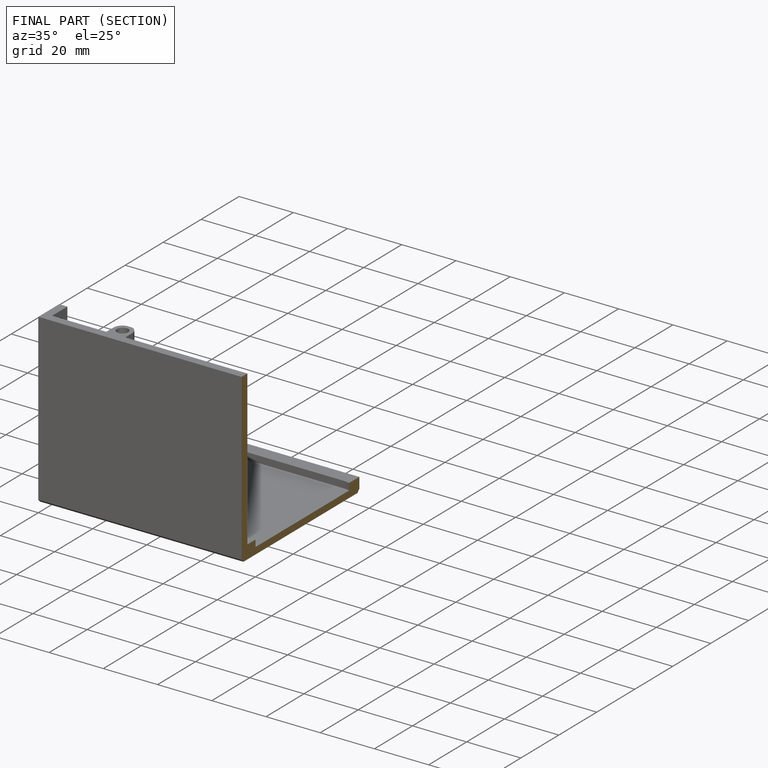
[diagram: finished part — half-section view (interior)]
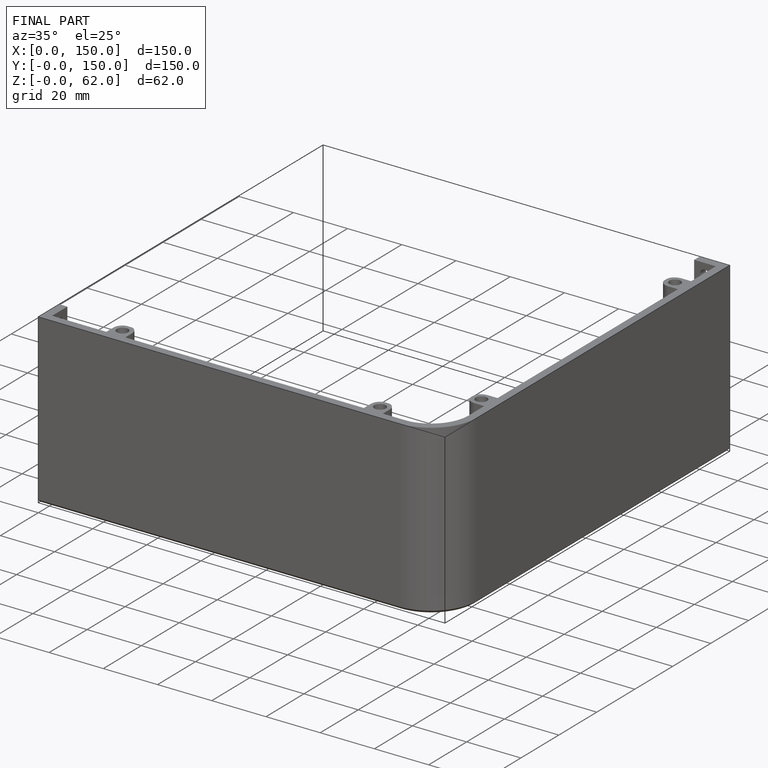
[diagram: finished part — iso view with bounding-box wireframe]
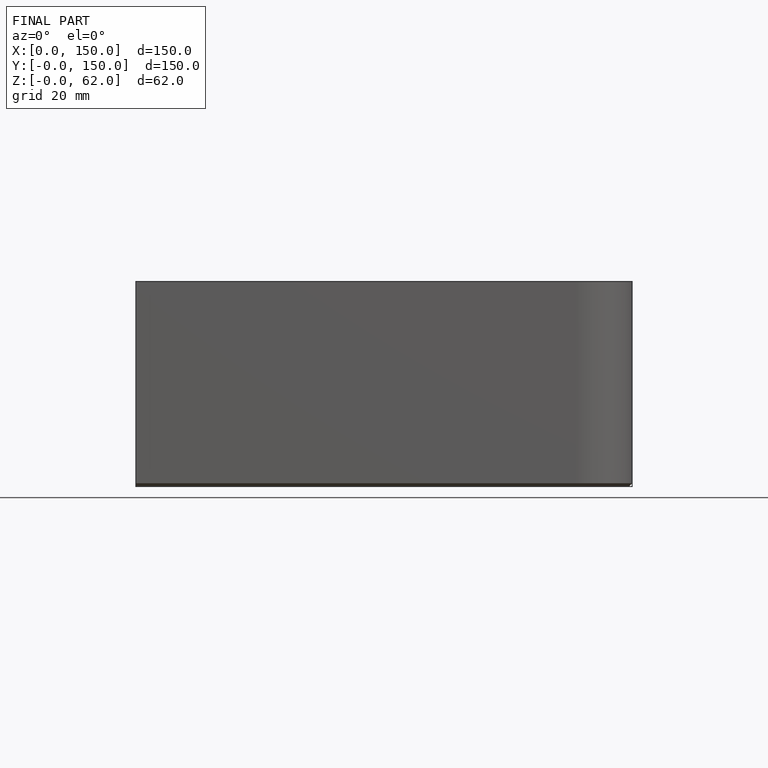
[diagram: finished part — front view with bounding-box wireframe]
